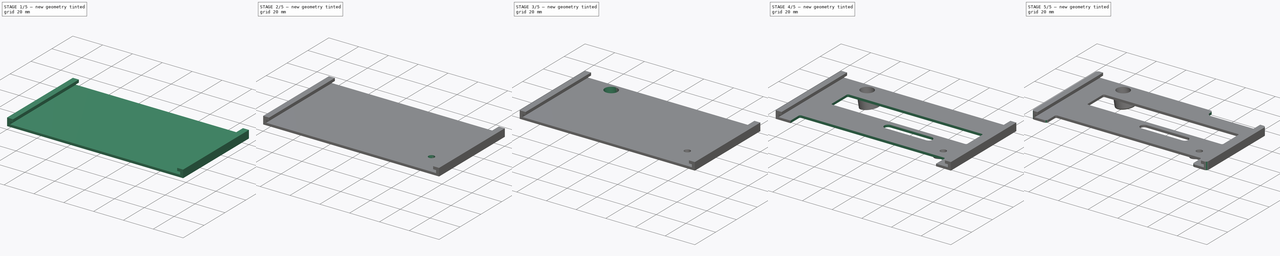
[diagram: build sequence overview — one tinted view per stage of 5, left to right]
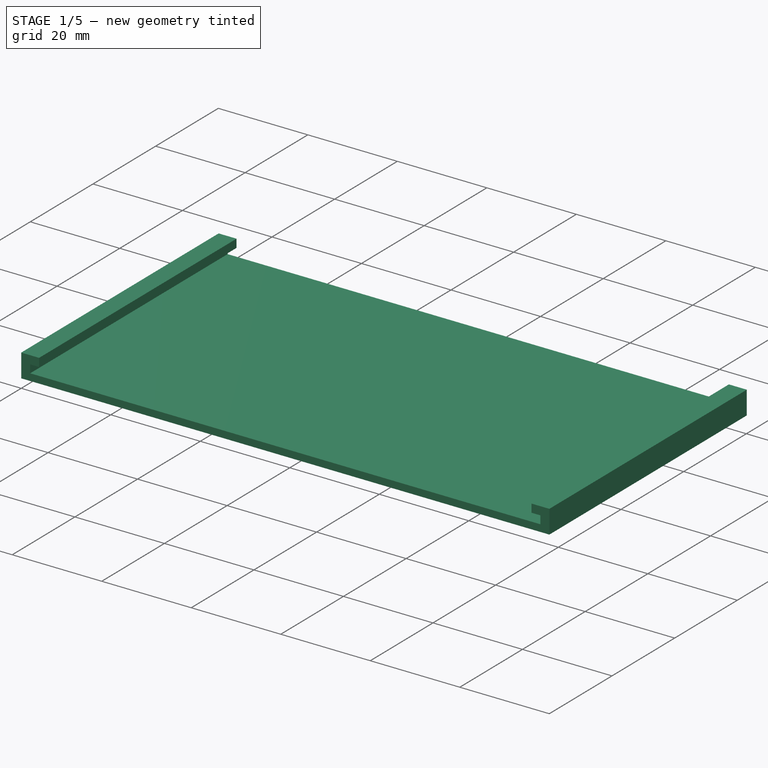
[diagram: stage 1 of 5 — iso view after this stage's code; geometry added in this stage tinted green]
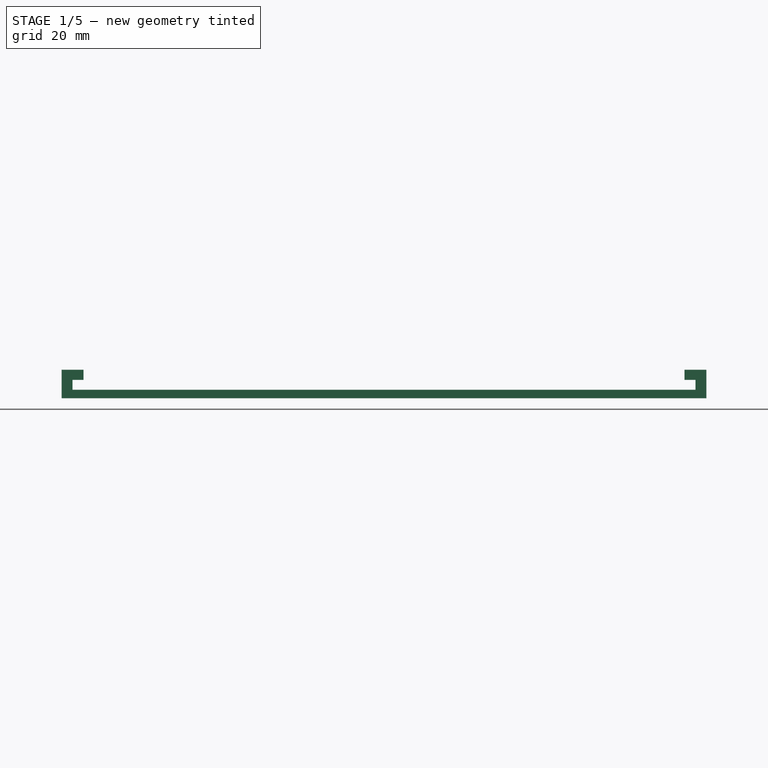
[diagram: stage 1 of 5 — front view after this stage's code; geometry added in this stage tinted green]
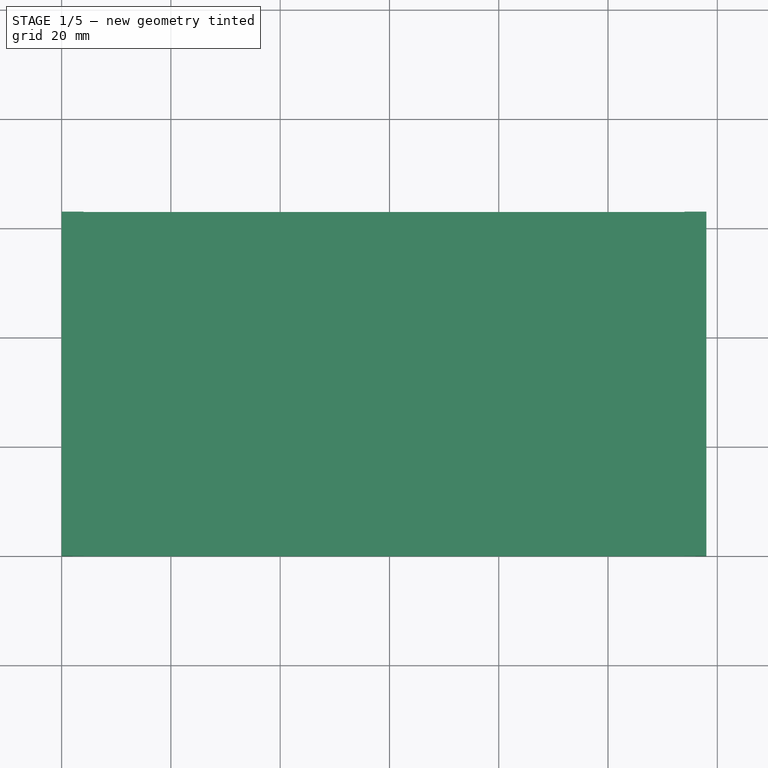
[diagram: stage 1 of 5 — top view after this stage's code; geometry added in this stage tinted green]
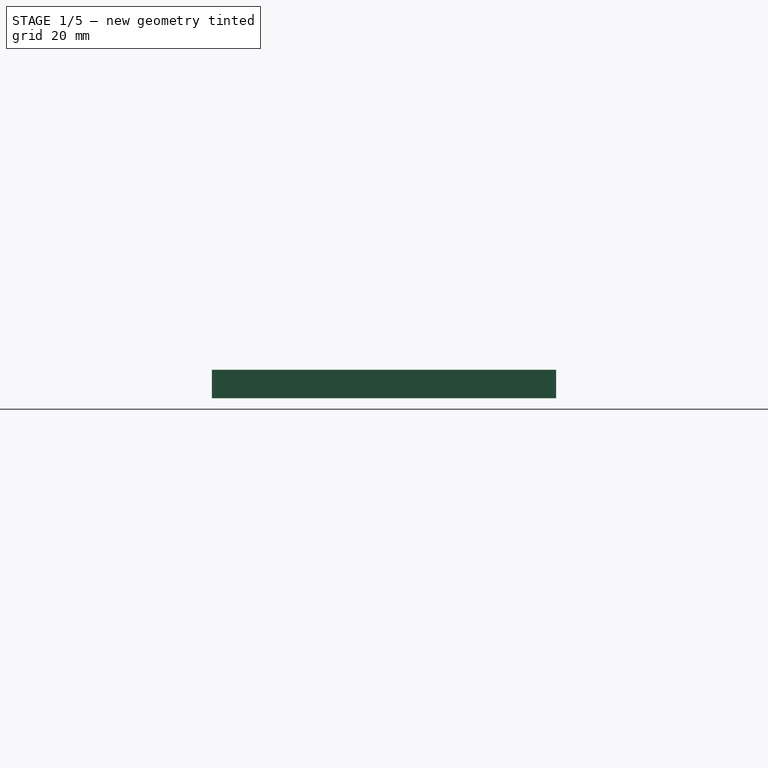
[diagram: stage 1 of 5 — right view after this stage's code; geometry added in this stage tinted green]
FCSTD DOCUMENT  (FreeCAD 0.21R33771 (Git))
Label: DecentXL-Right-Bracket
License: All rights reserved
LicenseURL: http://en.wikipedia.org/wiki/All_rights_reserved
objects: Sketcher::SketchObject×12, PartDesign::Pocket×9, PartDesign::Line×2, PartDesign::Plane×2, PartDesign::Pad×2, PartDesign::Fillet×2, Part::Box×1, PartDesign::FeatureBase×1, PartDesign::Body×1
note: 45 computed .brp shape members not serialized (recipe doc carries the construction recipe); baked Part::Feature solids carry a one-line shape summary decoded from their .brp

FEATURE [Part::Box] Box  label="Cube"
  AttacherType = Attacher::AttachEngine3D
  Height = 5.2
  Length = 118
  Width = 63
FEATURE [PartDesign::FeatureBase] BaseFeature
  BaseFeature = -> Box
FEATURE [Sketcher::SketchObject] Sketch  label="RailsGrooveSketch"
  ExternalGeometry = -> [BaseFeature]
  FullyConstrained = true
  MapMode = 5
  Placement = pos=(0,0,0) rot=(1,0,0;1.5708rad)
  Support = -> [BaseFeature]
  sketch-geometry (9):
    g0: LineSegment StartX=2 StartY=1.55 StartZ=0 EndX=116 EndY=1.55 EndZ=0
    g1: LineSegment StartX=116 StartY=1.55 StartZ=0 EndX=116 EndY=3.35 EndZ=0
    g2: LineSegment StartX=116 StartY=3.35 StartZ=0 EndX=114 EndY=3.35 EndZ=0
    g3: LineSegment StartX=114 StartY=3.35 StartZ=0 EndX=114 EndY=5.2 EndZ=0
    g4: LineSegment StartX=114 StartY=5.2 StartZ=0 EndX=4 EndY=5.2 EndZ=0
    g5: LineSegment StartX=4 StartY=5.2 StartZ=0 EndX=4 EndY=3.35 EndZ=0
    g6: LineSegment StartX=4 StartY=3.35 StartZ=0 EndX=2 EndY=3.35 EndZ=0
    g7: LineSegment StartX=2 StartY=3.35 StartZ=0 EndX=2 EndY=1.55 EndZ=0
    g8: GeomPoint X=59 Y=5.2 Z=0
  constraints (24):
    c: Horizontal(g0)
    c: Coincident(g0,g1)
    c: Vertical(g1)
    c: Coincident(g1,g2)
    c: Horizontal(g2)
    c: Coincident(g2,g3)
    c: PointOnObject(g3,g-3)
    c: Coincident(g3,g4)
    c: Coincident(g4,g5)
    c: Vertical(g5)
    c: Coincident(g5,g6)
    c: Horizontal(g6)
    c: Coincident(g6,g7)
    c: Coincident(g7,g0)
    c: Vertical(g7)
    c: Horizontal(g5,g2)
    c: Symmetric(g4,g3,g8)
    c: Vertical(g3)
    c: DistanceY(g1,g1) = 1.8
    c: DistanceY(g3,g3) = 1.85
    c: DistanceX(g0,g0) = 114
    c: Equal(g6,g2)
    c: DistanceX(g6,g6) = 2
    c: Symmetric(g-3,g-3,g8)
FEATURE [PartDesign::Pocket] Pocket  label="RailsGroove"
  BaseFeature = -> BaseFeature
  Direction = (0,1,-2e-16)
  Length = 40
  Length2 = 5
  Profile = -> Sketch
  ReferenceAxis = -> Sketch [N_Axis]
  Type = 1
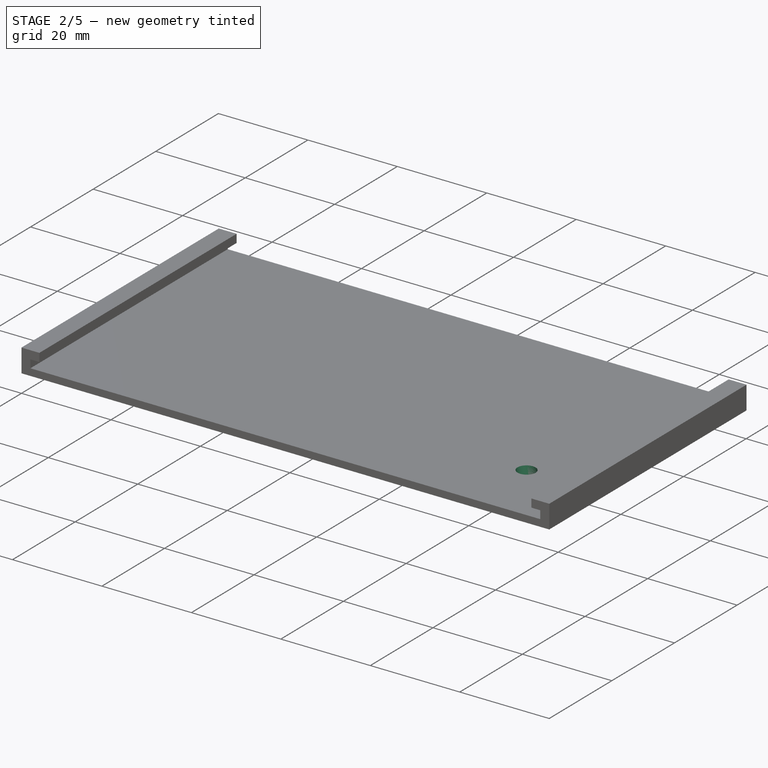
[diagram: stage 2 of 5 — iso view after this stage's code; geometry added in this stage tinted green]
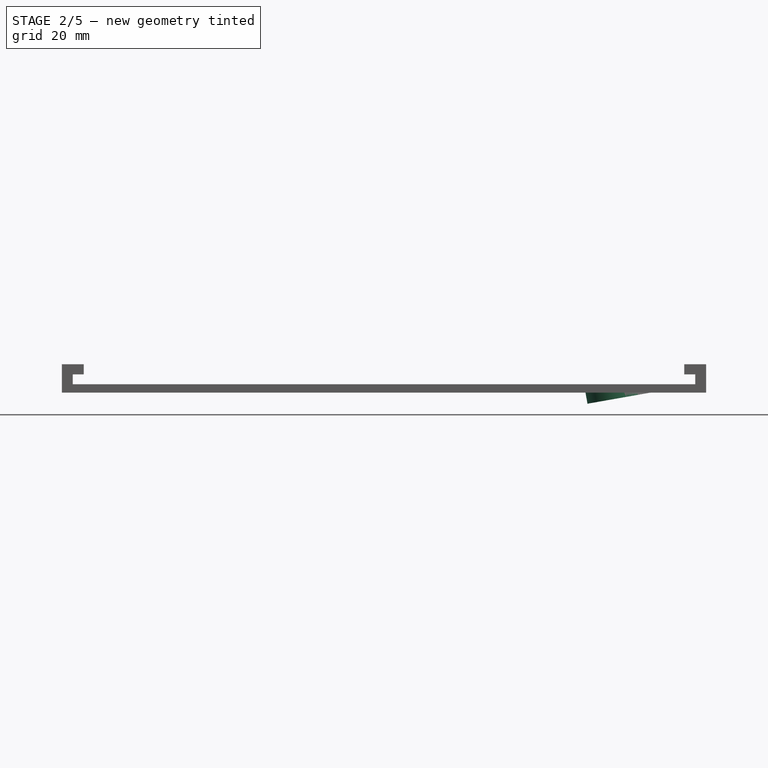
[diagram: stage 2 of 5 — front view after this stage's code; geometry added in this stage tinted green]
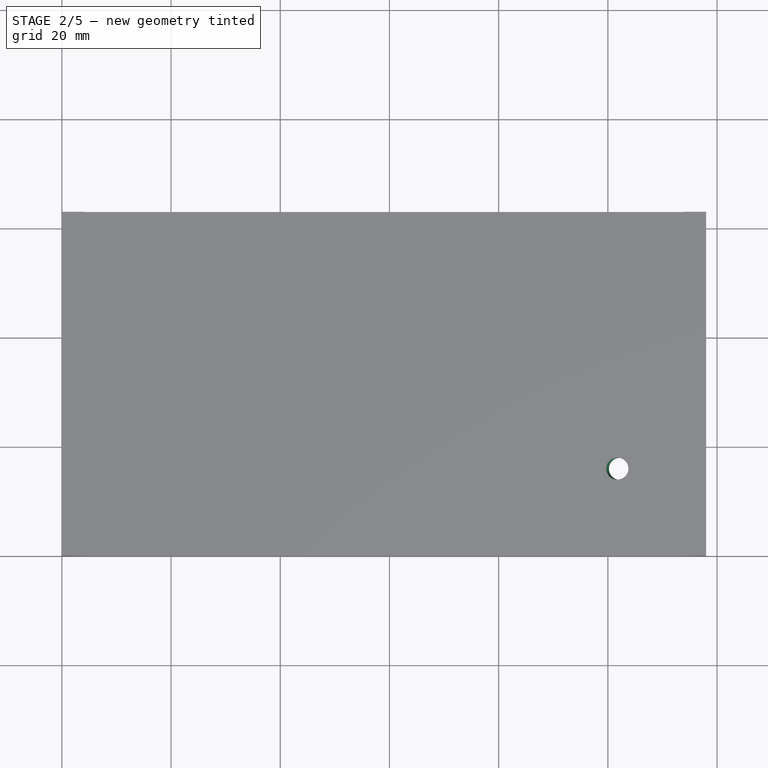
[diagram: stage 2 of 5 — top view after this stage's code; geometry added in this stage tinted green]
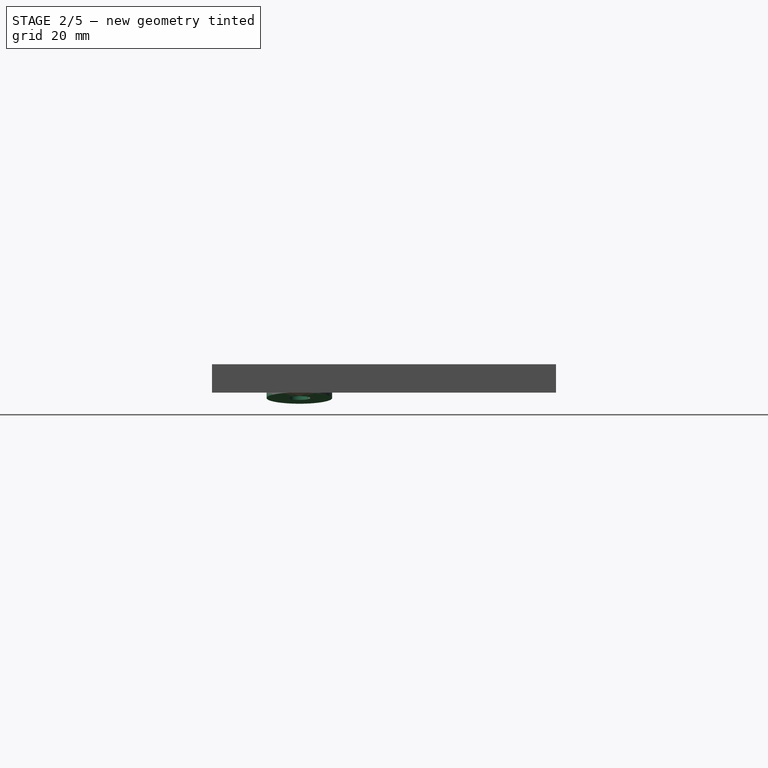
[diagram: stage 2 of 5 — right view after this stage's code; geometry added in this stage tinted green]
FEATURE [PartDesign::Line] DatumLine  label="BottomScrewColumnDatumLine"
  AttacherType = Attacher::AttachEngineLine
  AttachmentOffset = pos=(16,0,0) rot=(0,0,1;0rad)
  Length = 20
  MapMode = 29
  Placement = pos=(102,0,0) rot=(0,0.707107,0.707107;3.14159rad)
  ResizeMode = 0
  Support = -> [Pocket]
FEATURE [PartDesign::Line] DatumLine001  label="TopScrewColumnDatumLine"
  AttacherType = Attacher::AttachEngineLine
  AttachmentOffset = pos=(-22,0,0) rot=(0,0,1;0rad)
  Length = 20
  MapMode = 29
  Placement = pos=(22,0,0) rot=(0,0.707107,0.707107;3.14159rad)
  ResizeMode = 0
  Support = -> [Pocket]
FEATURE [PartDesign::Plane] DatumPlane  label="BottomScrewColumnDatumPlane"
  AttachmentOffset = pos=(0,0,0) rot=(0,-1,0;0.174533rad)
  Length = 172.451
  MapMode = 3
  Placement = pos=(102,0,0) rot=(0,1,0;2.96706rad)
  ResizeMode = 0
  Support = -> [DatumLine]
  Width = 110.941
FEATURE [PartDesign::Plane] DatumPlane001  label="TopScrewColumnDatumPlane"
  AttachmentOffset = pos=(0,0,0) rot=(0,-1,0;0.174533rad)
  Length = 172.451
  MapMode = 3
  Placement = pos=(22,0,0) rot=(0,1,0;2.96706rad)
  ResizeMode = 0
  Support = -> [DatumLine001]
  Width = 110.941
FEATURE [Sketcher::SketchObject] Sketch005  label="BottomScrewHoleSketch"
  ExternalGeometry = -> [DatumLine,BaseFeature]
  FullyConstrained = true
  MapMode = 5
  Placement = pos=(102,0,0) rot=(0,1,0;2.96706rad)
  Support = -> [DatumPlane]
  sketch-geometry (1):
    g0: Circle CenterX=1.42e-14 CenterY=16 CenterZ=0 NormalX=0 NormalY=0 NormalZ=1 AngleXU=0 Radius=2
  constraints (3):
    c: Diameter(g0) = 4
    c: PointOnObject(g0,g-3)
    c: DistanceY(g-4,g0) = 16
FEATURE [Sketcher::SketchObject] Sketch006  label="BottomScrewColumnSketch"
  AttachmentOffset = pos=(0,0,1) rot=(0,0,1;0rad)
  ExternalGeometry = -> [DatumLine,Sketch005]
  FullyConstrained = true
  MapMode = 5
  Placement = pos=(102.174,-2e-16,-0.984808) rot=(0,1,0;2.96706rad)
  Support = -> [DatumPlane]
  sketch-geometry (1):
    g0: Circle CenterX=1.42e-14 CenterY=16 CenterZ=0 NormalX=0 NormalY=0 NormalZ=1 AngleXU=0 Radius=6
  constraints (2):
    c: Diameter(g0) = 12
    c: Coincident(g-4,g0)
FEATURE [Sketcher::SketchObject] Sketch007  label="TopScrewHoleSketch"
  ExternalGeometry = -> [DatumLine001,Sketch006]
  FullyConstrained = true
  MapMode = 5
  Placement = pos=(22,0,-4e-16) rot=(0,1,0;2.96706rad)
  Support = -> [DatumPlane001]
  sketch-geometry (1):
    g0: Circle CenterX=0 CenterY=57 CenterZ=0 NormalX=0 NormalY=0 NormalZ=1 AngleXU=0 Radius=2
  constraints (3):
    c: Diameter(g0) = 4
    c: DistanceY(g-4,g0) = 41
    c: PointOnObject(g0,g-3)
FEATURE [Sketcher::SketchObject] Sketch008  label="TopColumnSketch"
  AttachmentOffset = pos=(0,0,8) rot=(0,0,1;0rad)
  ExternalGeometry = -> [Sketch007]
  FullyConstrained = true
  MapMode = 5
  Placement = pos=(23.3892,-1.7e-15,-7.87846) rot=(0,1,0;2.96706rad)
  Support = -> [DatumPlane001]
  sketch-geometry (1):
    g0: Circle CenterX=0 CenterY=57 CenterZ=0 NormalX=0 NormalY=0 NormalZ=1 AngleXU=0 Radius=6
  constraints (2):
    c: Coincident(g0,g-3)
    c: Diameter(g0) = 12
FEATURE [Sketcher::SketchObject] Sketch004  label="TopScrewColumnClearanceSketch"
  AttachmentOffset = pos=(0,0,4) rot=(0,0,1;0rad)
  ExternalGeometry = -> [Sketch008]
  FullyConstrained = true
  MapMode = 5
  Placement = pos=(22.6946,-9e-16,-3.93923) rot=(0,1,0;2.96706rad)
  Support = -> [DatumPlane001]
  sketch-geometry (1):
    g0: Circle CenterX=0 CenterY=57 CenterZ=0 NormalX=0 NormalY=0 NormalZ=1 AngleXU=0 Radius=4.25
  constraints (2):
    c: Coincident(g0,g-3)
    c: Diameter(g0) = 8.5
FEATURE [PartDesign::Pad] Pad  label="BottomScrewColumn"
  BaseFeature = -> Pocket
  Direction = (0.173648,-2e-16,-0.984808)
  Length = 5
  Length2 = 10
  Profile = -> Sketch006
  ReferenceAxis = -> Sketch006 [N_Axis]
  Reversed = true
  Type = 3
  UpToFace = -> Pocket [Face5]
FEATURE [PartDesign::Pocket] Pocket005  label="BottomScrewHole"
  BaseFeature = -> Pad
  Direction = (-0.173648,2e-16,0.984808)
  Length = 15
  Length2 = 5
  Midplane = true
  Profile = -> Sketch005
  ReferenceAxis = -> Sketch005 [N_Axis]
  Type = 1
FEATURE [Sketcher::SketchObject] Sketch009  label="BottomScrewColumnClearanceSketch"
  AttachmentOffset = pos=(0,0,-2) rot=(0,0,1;0rad)
  ExternalGeometry = -> [Sketch005]
  FullyConstrained = true
  MapMode = 5
  Placement = pos=(101.653,4e-16,1.96962) rot=(0,1,0;2.96706rad)
  Support = -> [DatumPlane]
  sketch-geometry (1):
    g0: Circle CenterX=1.42e-14 CenterY=16 CenterZ=0 NormalX=0 NormalY=0 NormalZ=1 AngleXU=0 Radius=4.25
  constraints (2):
    c: Coincident(g0,g-3)
    c: Diameter(g0) = 8.5
FEATURE [PartDesign::Pocket] Pocket008  label="BottomScrewColumnClearance"
  BaseFeature = -> Pocket005
  Direction = (-0.173648,2e-16,0.984808)
  Length = 0
  Length2 = 5
  Profile = -> Sketch009
  ReferenceAxis = -> Sketch009 [N_Axis]
  Refine = true
  Type = 3
  UpToFace = -> Pocket005 [Face11]
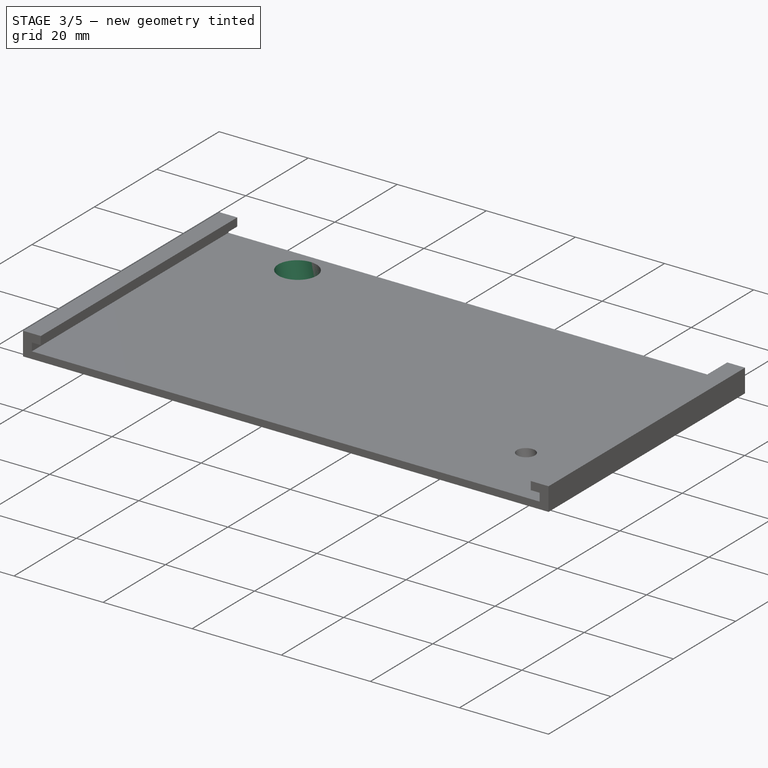
[diagram: stage 3 of 5 — iso view after this stage's code; geometry added in this stage tinted green]
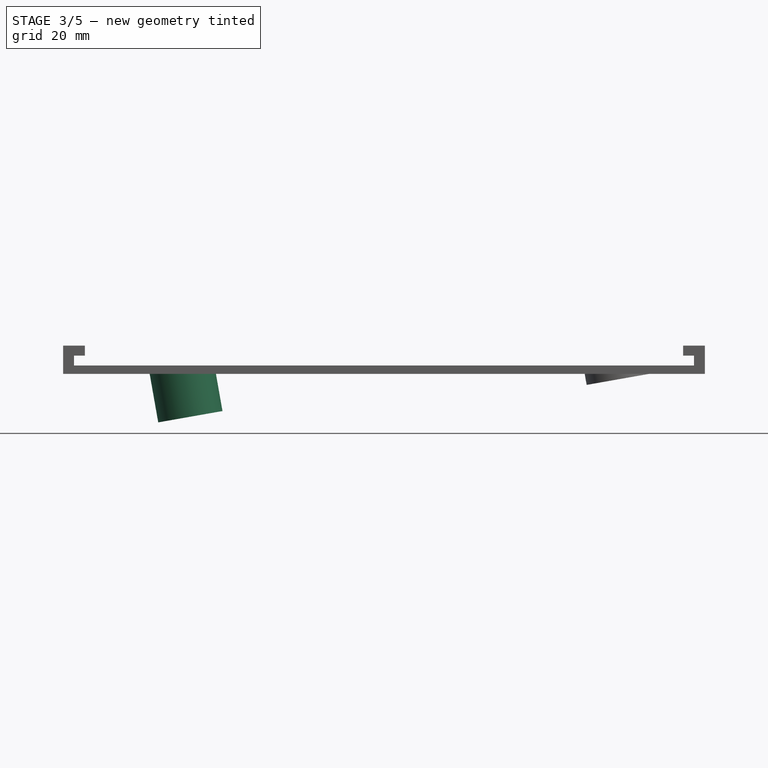
[diagram: stage 3 of 5 — front view after this stage's code; geometry added in this stage tinted green]
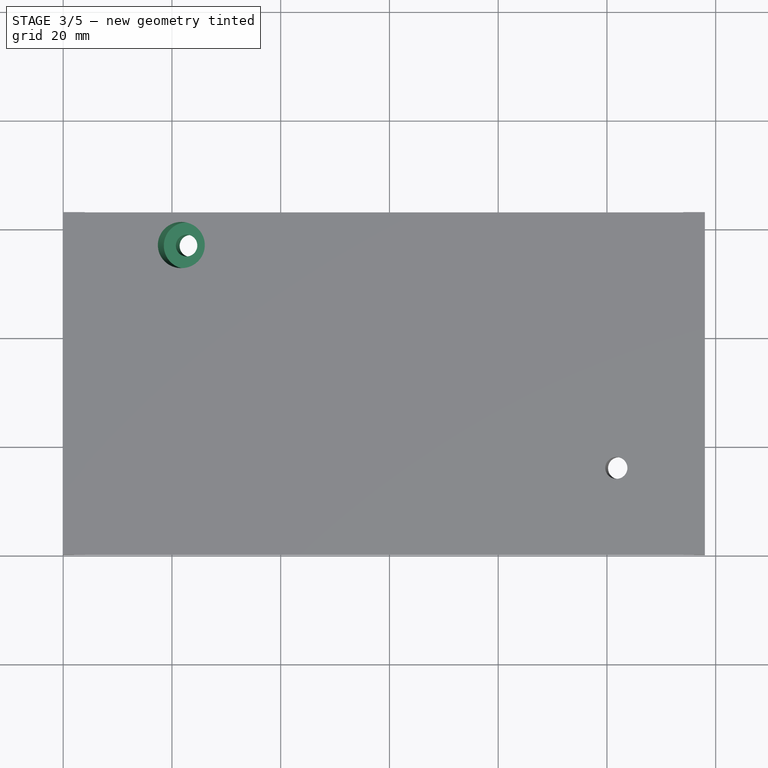
[diagram: stage 3 of 5 — top view after this stage's code; geometry added in this stage tinted green]
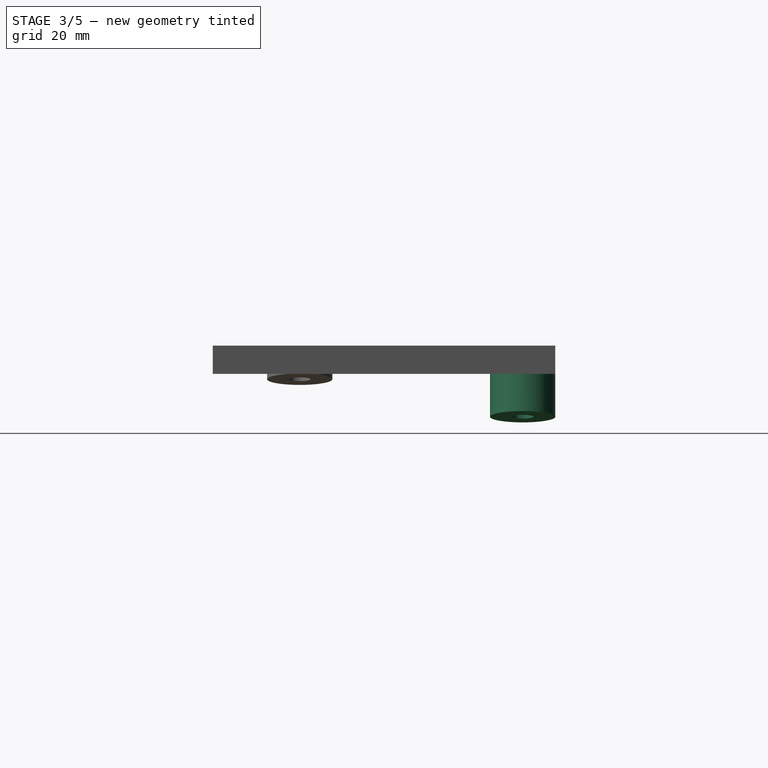
[diagram: stage 3 of 5 — right view after this stage's code; geometry added in this stage tinted green]
FEATURE [PartDesign::Pad] Pad001  label="TopScrewColumn"
  BaseFeature = -> Pocket008
  Direction = (0.173648,-2e-16,-0.984808)
  Length = 2
  Length2 = 10
  Profile = -> Sketch008
  ReferenceAxis = -> Sketch008 [N_Axis]
  Type = 3
  UpToFace = -> Pocket008 [Face5]
FEATURE [Sketcher::SketchObject] Sketch011  label="SwitchAccessSketch"
  FullyConstrained = true
  MapMode = 5
  Placement = pos=(0,0,2) rot=(0,0,1;0rad)
  expr: Constraints[20] = 19.05 * 5 - 4
  sketch-geometry (10):
    g0: ArcOfCircle CenterX=17 CenterY=31.35 CenterZ=0 NormalX=0 NormalY=0 NormalZ=1 AngleXU=0 Radius=1 StartAngle=3.14159 EndAngle=4.71239
    g1: LineSegment StartX=16 StartY=31.35 StartZ=0 EndX=16 EndY=45.4 EndZ=0
    g2: ArcOfCircle CenterX=17 CenterY=45.4 CenterZ=0 NormalX=0 NormalY=0 NormalZ=1 AngleXU=0 Radius=1 StartAngle=1.5708 EndAngle=3.14159
    g3: LineSegment StartX=17 StartY=46.4 StartZ=0 EndX=106.25 EndY=46.4 EndZ=0
    g4: ArcOfCircle CenterX=106.25 CenterY=45.4 CenterZ=0 NormalX=0 NormalY=0 NormalZ=1 AngleXU=0 Radius=1 StartAngle=-3.09308e-11 EndAngle=1.5708
    g5: LineSegment StartX=107.25 StartY=45.4 StartZ=0 EndX=107.25 EndY=31.35 EndZ=0
    g6: ArcOfCircle CenterX=106.25 CenterY=31.35 CenterZ=0 NormalX=0 NormalY=0 NormalZ=1 AngleXU=0 Radius=1 StartAngle=4.71239 EndAngle=6.28319
    g7: LineSegment StartX=106.25 StartY=30.35 StartZ=0 EndX=17 EndY=30.35 EndZ=0
    g8: GeomPoint X=16 Y=30.35 Z=0
    g9: GeomPoint X=107.25 Y=46.4 Z=0
  constraints (24):
    c: Tangent(g0,g1) = 1.5708
    c: Tangent(g1,g2) = 1.5708
    c: Tangent(g2,g3) = 1.5708
    c: Tangent(g3,g4) = 1.5708
    c: Tangent(g4,g5) = 1.5708
    c: Tangent(g5,g6) = 1.5708
    c: Tangent(g6,g7) = 1.5708
    c: Tangent(g7,g0) = 1.5708
    c: Horizontal(g3)
    c: Horizontal(g7)
    c: Vertical(g1)
    c: Vertical(g5)
    c: Equal(g0,g2)
    c: Equal(g2,g4)
    c: Equal(g4,g6)
    c: PointOnObject(g8,g1)
    c: PointOnObject(g8,g7)
    c: PointOnObject(g9,g3)
    c: PointOnObject(g9,g5)
    c: Diameter(g2) = 2
    c: DistanceX(g1,g4) = 91.25
    c: DistanceY(g6,g3) = 16.05
    c: DistanceX(g-1,g8) = 16
    c: DistanceY(g-1,g8) = 30.35
FEATURE [Sketcher::SketchObject] Sketch013  label="PcbClearanceSketch"
  FullyConstrained = true
  MapMode = 5
  Support = -> [XY_Plane]
  sketch-geometry (6):
    g0: LineSegment StartX=10 StartY=0 StartZ=0 EndX=10 EndY=8 EndZ=0
    g1: ArcOfCircle CenterX=11 CenterY=8 CenterZ=0 NormalX=0 NormalY=0 NormalZ=1 AngleXU=0 Radius=1 StartAngle=1.5708 EndAngle=3.14159
    g2: ArcOfCircle CenterX=107 CenterY=8 CenterZ=0 NormalX=0 NormalY=0 NormalZ=1 AngleXU=0 Radius=1 StartAngle=5e-16 EndAngle=1.5708
    g3: LineSegment StartX=108 StartY=8 StartZ=0 EndX=108 EndY=0 EndZ=0
    g4: LineSegment StartX=10 StartY=0 StartZ=0 EndX=108 EndY=0 EndZ=0
    g5: LineSegment StartX=11 StartY=9 StartZ=0 EndX=107 EndY=9 EndZ=0
  constraints (18):
    c: Tangent(g0,g1) = 1.5708
    c: Tangent(g2,g3) = 1.5708
    c: Vertical(g0)
    c: Vertical(g3)
    c: Equal(g1,g2)
    c: Coincident(g4,g0)
    c: Coincident(g4,g3)
    c: Horizontal(g4)
    c: Diameter(g1) = 2
    c: DistanceY(g0,g1) = 9
    c: Coincident(g5,g1)
    c: Horizontal(g5)
    c: Coincident(g2,g5)
    c: Vertical(g2,g2)
    c: Vertical(g1,g1)
    c: PointOnObject(g0,g-1)
    c: DistanceX(g-1,g0) = 10
    c: DistanceX(g4,g4) = 98
FEATURE [PartDesign::Pocket] Pocket016  label="TopScrewColumnClearance"
  BaseFeature = -> Pad001
  Direction = (-0.173648,2e-16,0.984808)
  Length = 0
  Length2 = 5
  Profile = -> Sketch004
  ReferenceAxis = -> Sketch004 [N_Axis]
  Type = 3
  UpToFace = -> Pad001 [Face11]
FEATURE [PartDesign::Pocket] Pocket014  label="TopScrewHole"
  BaseFeature = -> Pocket016
  Direction = (-0.173648,2e-16,0.984808)
  Length = 0
  Length2 = 5
  Profile = -> Sketch007
  ReferenceAxis = -> Sketch007 [N_Axis]
  Reversed = true
  Type = 1
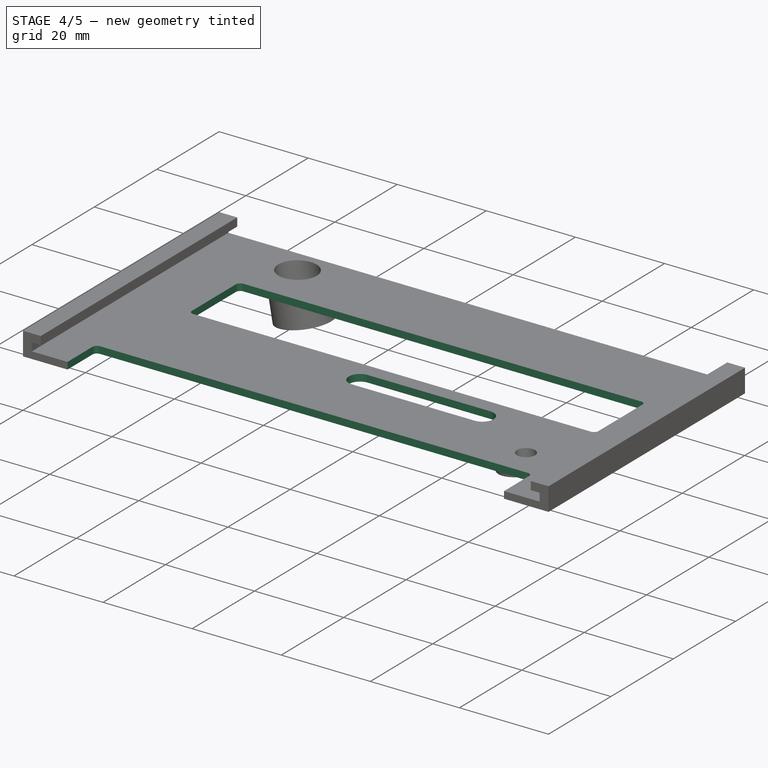
[diagram: stage 4 of 5 — iso view after this stage's code; geometry added in this stage tinted green]
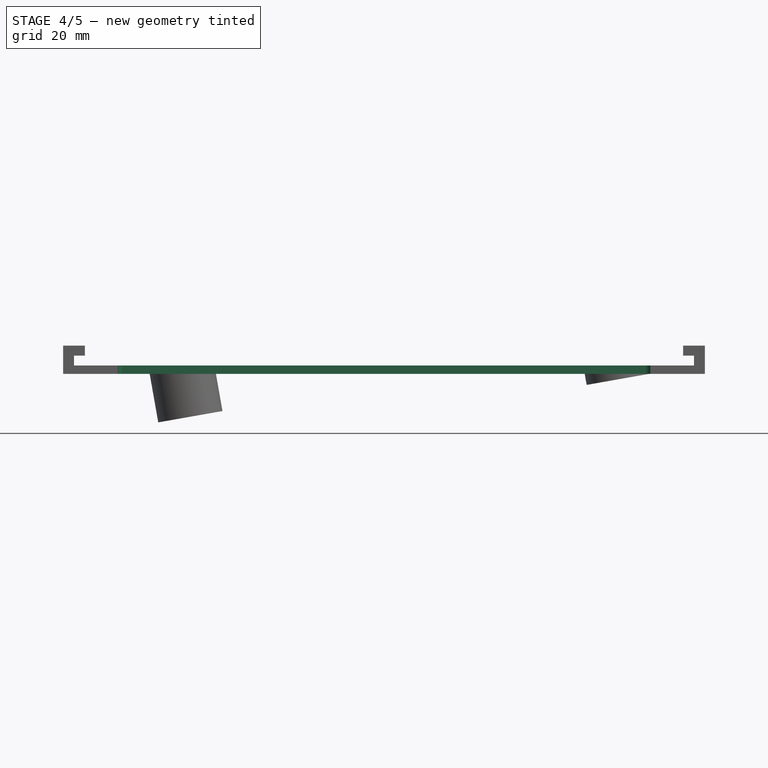
[diagram: stage 4 of 5 — front view after this stage's code; geometry added in this stage tinted green]
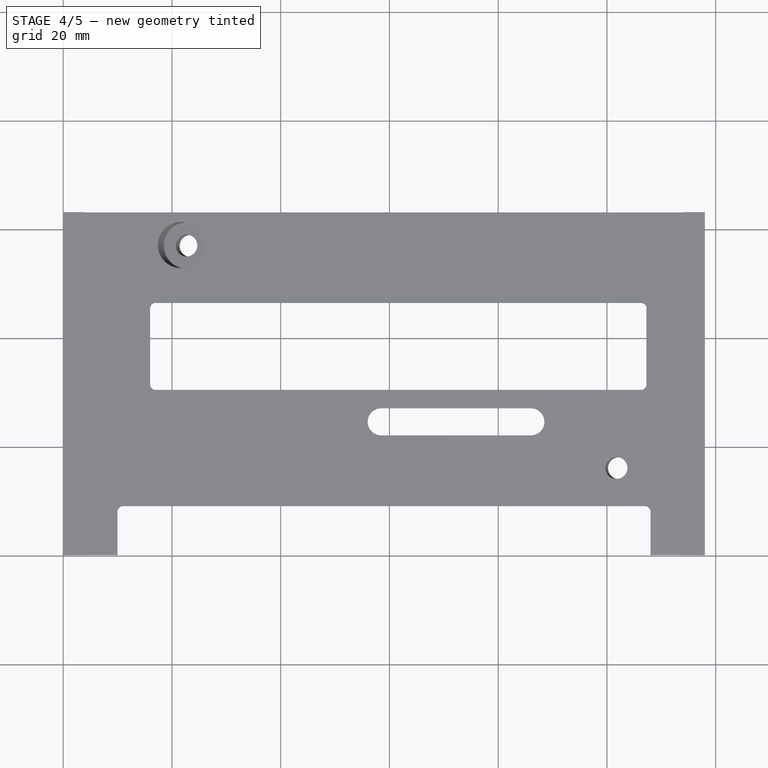
[diagram: stage 4 of 5 — top view after this stage's code; geometry added in this stage tinted green]
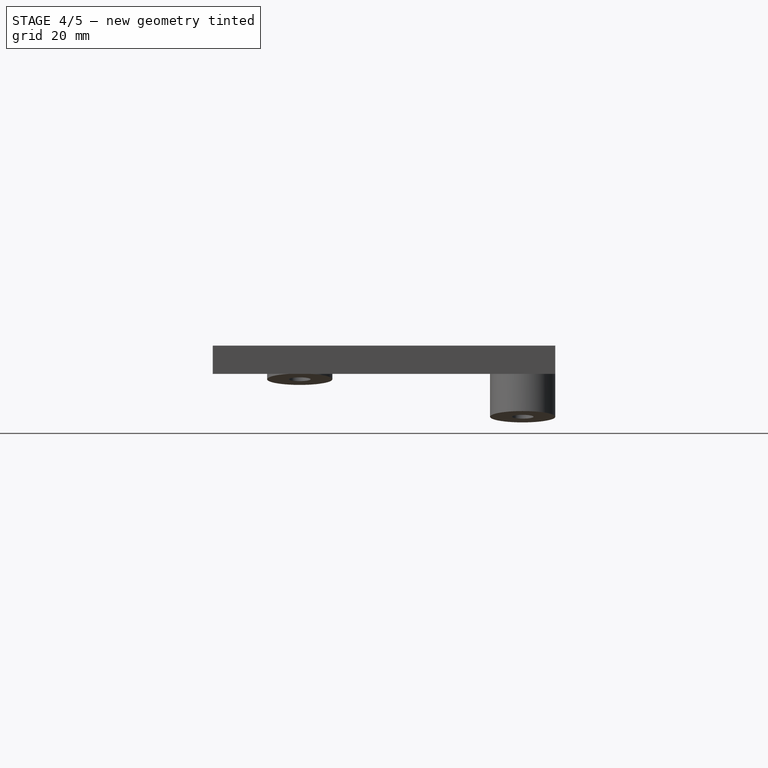
[diagram: stage 4 of 5 — right view after this stage's code; geometry added in this stage tinted green]
FEATURE [Sketcher::SketchObject] Sketch010  label="CableSlotSketch"
  ExternalGeometry = -> [Pocket014]
  FullyConstrained = true
  MapMode = 5
  Support = -> [XY_Plane]
  sketch-geometry (4):
    g0: ArcOfCircle CenterX=58.5 CenterY=24.5 CenterZ=0 NormalX=0 NormalY=0 NormalZ=1 AngleXU=0 Radius=2.5 StartAngle=1.5708 EndAngle=4.71239
    g1: ArcOfCircle CenterX=86 CenterY=24.5 CenterZ=0 NormalX=0 NormalY=0 NormalZ=1 AngleXU=0 Radius=2.5 StartAngle=4.71239 EndAngle=7.85398
    g2: LineSegment StartX=58.5 StartY=22 StartZ=0 EndX=86 EndY=22 EndZ=0
    g3: LineSegment StartX=86 StartY=27 StartZ=0 EndX=58.5 EndY=27 EndZ=0
  constraints (10):
    c: Tangent(g0,g2) = -1.5708
    c: Tangent(g2,g1) = -1.5708
    c: Tangent(g1,g3) = -1.5708
    c: Tangent(g3,g0) = -1.5708
    c: Equal(g0,g1)
    c: Horizontal(g2)
    c: DistanceX(g0,g1) = 27.5
    c: Diameter(g0) = 5
    c: DistanceY(g-3,g1) = 8.5
    c: DistanceX(g1,g-4) = 32
FEATURE [PartDesign::Pocket] Pocket009  label="CableSlot"
  BaseFeature = -> Pocket014
  Direction = (0,0,-1)
  Length = 0
  Length2 = 5
  Profile = -> Sketch010
  ReferenceAxis = -> Sketch010 [N_Axis]
  Reversed = true
  Type = 1
FEATURE [PartDesign::Pocket] Pocket010  label="SwitchAccess"
  BaseFeature = -> Pocket009
  Direction = (0,0,-1)
  Length = 0
  Length2 = 5
  Profile = -> Sketch011
  ReferenceAxis = -> Sketch011 [N_Axis]
  Type = 1
FEATURE [PartDesign::Pocket] Pocket012  label="PcbClearance"
  BaseFeature = -> Pocket010
  Direction = (0,0,-1)
  Length = 5
  Length2 = 5
  Profile = -> Sketch013
  ReferenceAxis = -> Sketch013 [N_Axis]
  Reversed = true
  Type = 1
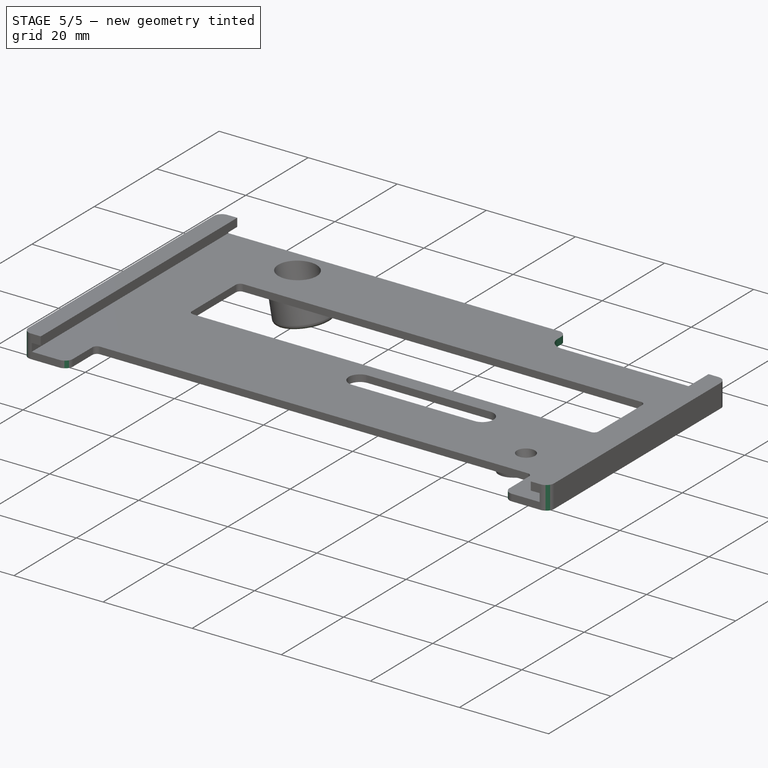
[diagram: stage 5 of 5 — iso view after this stage's code; geometry added in this stage tinted green]
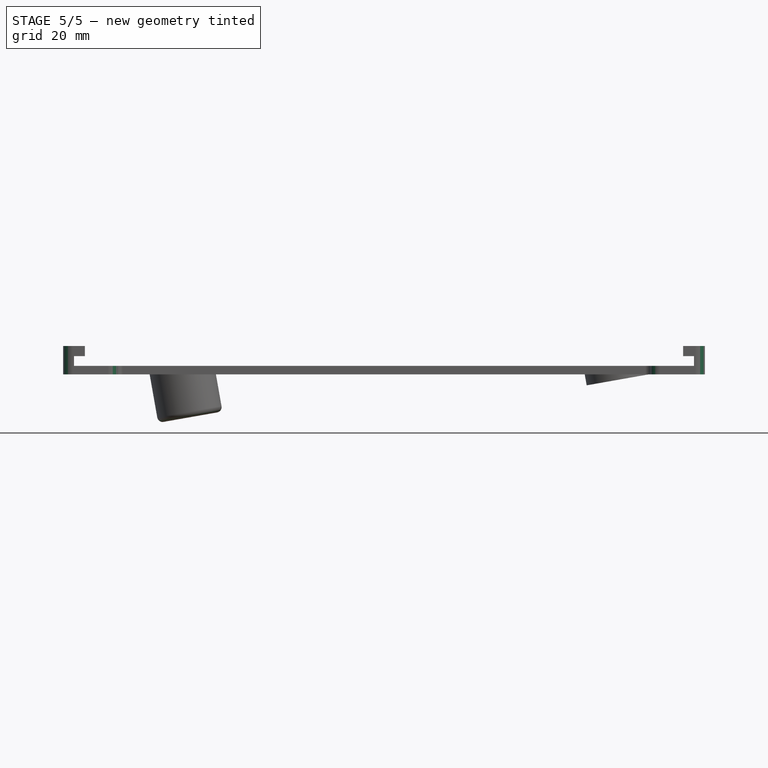
[diagram: stage 5 of 5 — front view after this stage's code; geometry added in this stage tinted green]
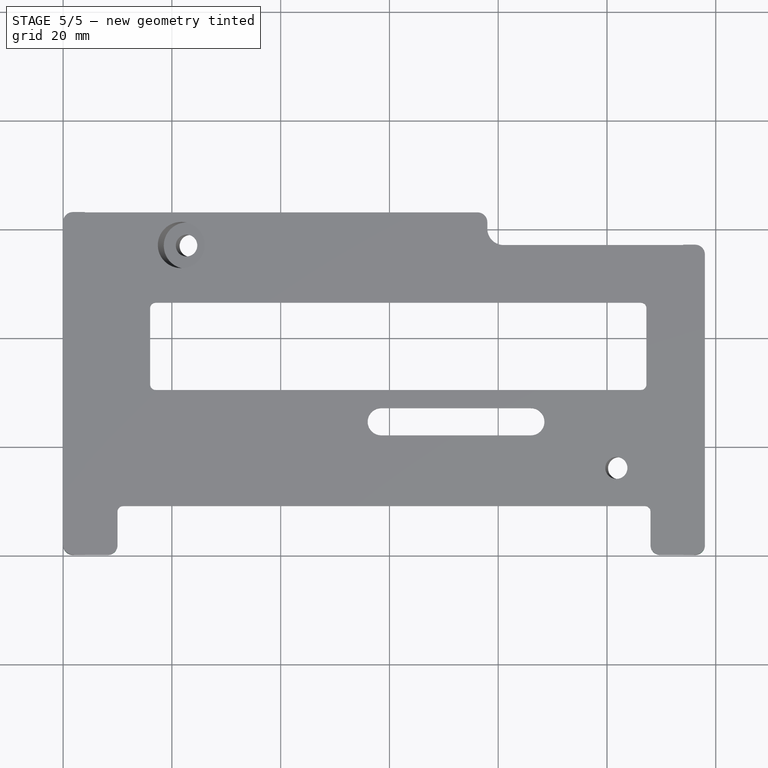
[diagram: stage 5 of 5 — top view after this stage's code; geometry added in this stage tinted green]
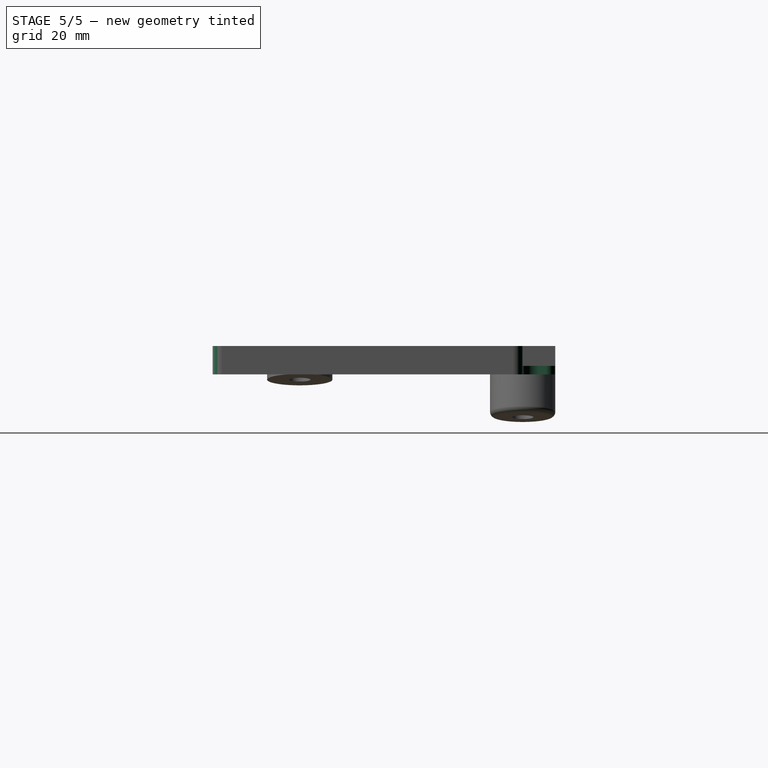
[diagram: stage 5 of 5 — right view after this stage's code; geometry added in this stage tinted green]
FEATURE [Sketcher::SketchObject] Sketch014  label="BottomRightColumnClearanceSketch"
  ExternalGeometry = -> [Pocket012]
  FullyConstrained = true
  MapMode = 5
  Support = -> [XY_Plane]
  sketch-geometry (5):
    g0: LineSegment StartX=78 StartY=63 StartZ=0 EndX=118 EndY=63 EndZ=0
    g1: LineSegment StartX=118 StartY=57 StartZ=0 EndX=81 EndY=57 EndZ=0
    g2: ArcOfCircle CenterX=81 CenterY=60 CenterZ=0 NormalX=0 NormalY=0 NormalZ=1 AngleXU=0 Radius=3 StartAngle=3.14159 EndAngle=4.71239
    g3: LineSegment StartX=78 StartY=60 StartZ=0 EndX=78 EndY=63 EndZ=0
    g4: LineSegment StartX=118 StartY=63 StartZ=0 EndX=118 EndY=57 EndZ=0
  constraints (13):
    c: Tangent(g1,g2) = 1.5708
    c: Tangent(g2,g3) = 1.5708
    c: Horizontal(g0)
    c: Horizontal(g1)
    c: Vertical(g3)
    c: Coincident(g4,g0)
    c: Coincident(g4,g1)
    c: Vertical(g4)
    c: Coincident(g3,g0)
    c: Radius(g2) = 3
    c: DistanceY(g4,g4) = 6
    c: DistanceX(g0,g0) = 40
    c: Coincident(g0,g-3)
FEATURE [PartDesign::Pocket] Pocket013  label="BottomRightColumnClearance"
  BaseFeature = -> Pocket012
  Direction = (0,0,-1)
  Length = 5
  Length2 = 5
  Midplane = true
  Profile = -> Sketch014
  ReferenceAxis = -> Sketch014 [N_Axis]
  Refine = true
  Type = 1
FEATURE [Sketcher::SketchObject] Sketch015  label="UnusedTopRightClearance"
  ExternalGeometry = -> [Pocket013]
  FullyConstrained = true
  MapMode = 5
  Placement = pos=(0,0,0) rot=(1,0,0;1.5708rad)
  Support = -> [Pocket013]
  sketch-geometry (4):
    g0: LineSegment StartX=20.725 StartY=-4.28653 StartZ=0 EndX=134.151 EndY=15.7135 EndZ=0
    g1: LineSegment StartX=134.151 StartY=15.7135 StartZ=0 EndX=24.725 EndY=15.7135 EndZ=0
    g2: LineSegment StartX=24.725 StartY=15.7135 StartZ=0 EndX=24.725 EndY=-4.28653 EndZ=0
    g3: LineSegment StartX=24.725 StartY=-4.28653 StartZ=0 EndX=20.725 EndY=-4.28653 EndZ=0
  constraints (11):
    c: Coincident(g-3,g0)
    c: PointOnObject(g0,g-3)
    c: Coincident(g0,g1)
    c: Horizontal(g1)
    c: Vertical(g2)
    c: Coincident(g2,g3)
    c: Coincident(g3,g0)
    c: Horizontal(g3)
    c: DistanceX(g3,g3) = 4
    c: DistanceY(g0,g0) = 20
    c: Coincident(g1,g2)
FEATURE [PartDesign::Fillet] Fillet  label="SideFillet"
  Base = -> Pocket013 [Edge7,Edge11,Edge76,Edge70,Edge68,Edge20,Edge9]
  BaseFeature = -> Pocket013
  Radius = 1.8
  SupportTransform = false
  UseAllEdges = false
FEATURE [PartDesign::Fillet] Fillet001  label="TopColumnFillet"
  Base = -> Fillet [Edge124]
  BaseFeature = -> Fillet
  Radius = 1
  SupportTransform = false
  UseAllEdges = false
FEATURE [PartDesign::Body] Body
  BaseFeature = -> Box
  Group = -> [BaseFeature,Sketch,Pocket,Sketch004,DatumLine,DatumLine001,DatumPlane,DatumPlane001,Sketch005,Pad,Pocket005,Sketch006,Sketch007,Sketch009,Pocket008,Pad001,Sketch008,Sketch010,Pocket016,Pocket014,Pocket009,Sketch011,Pocket010,Sketch013,Pocket012,Sketch014,Pocket013,Sketch015,Fillet,Fillet001]
  Origin = -> Origin
  Tip = -> Fillet001
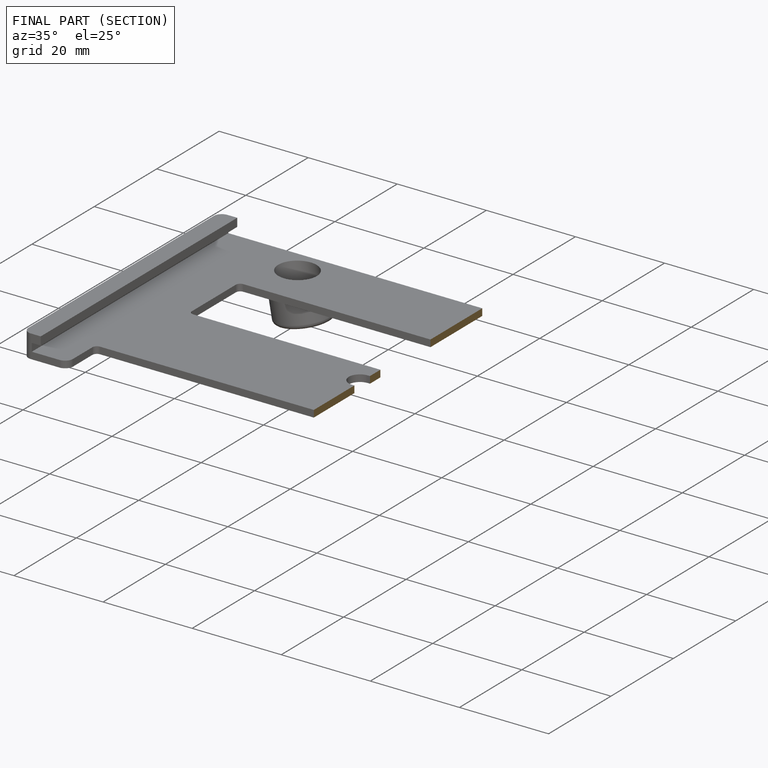
[diagram: finished part — half-section view (interior)]
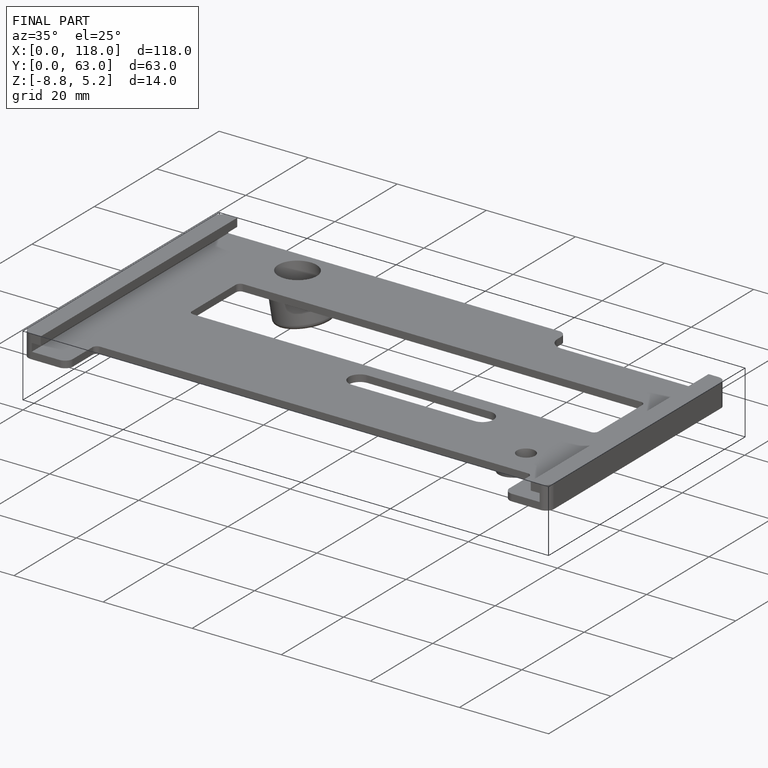
[diagram: finished part — iso view with bounding-box wireframe]
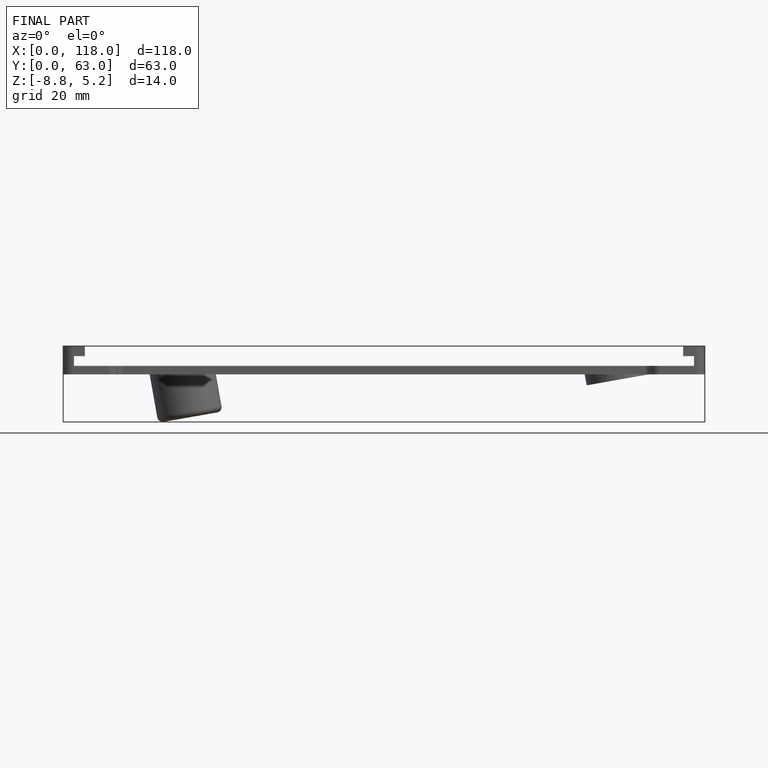
[diagram: finished part — front view with bounding-box wireframe]
